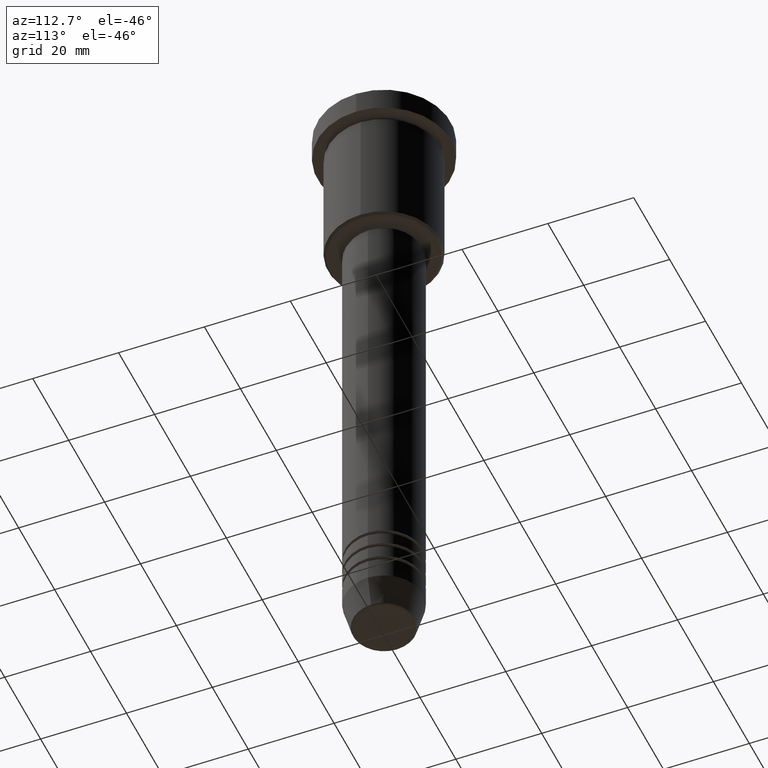
[diagram: clean part render]
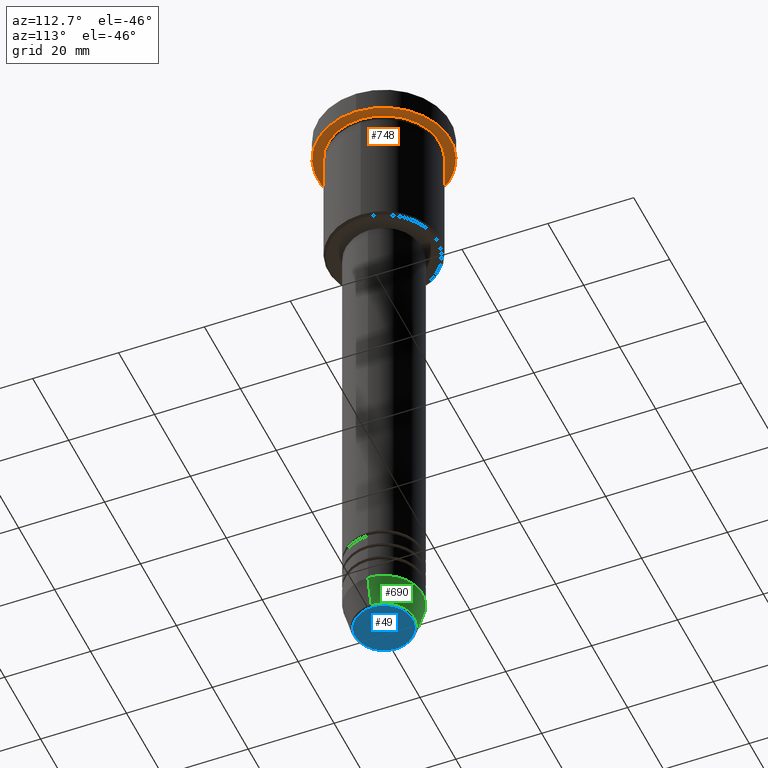
[diagram: same view with three faces highlighted in distinct colors, each labeled with its STEP entity id]
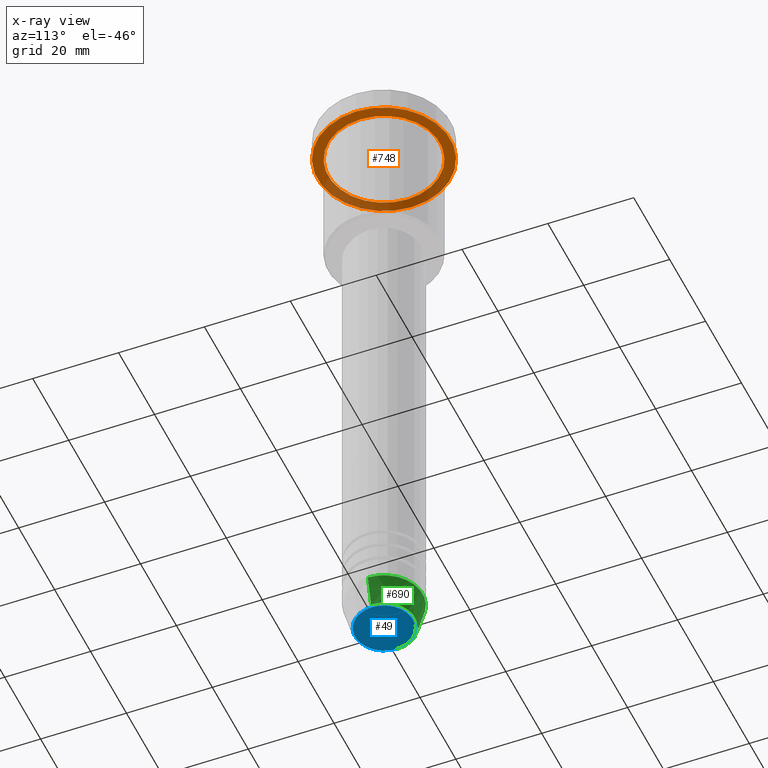
[diagram: x-ray of the same camera — body ghosted, the three highlighted faces saturated]
A machine part, auxiliary view with three faces highlighted in distinct colors.
The next image is the same camera in x-ray (body ghosted, the three faces saturated) — at least one of them is partly hidden behind the body in this view.
Their STEP definitions:

[orange] entity #748 — the highlighted planar face has unit normal (0, 0, -1).
#3 = CIRCLE ( 'NONE', #330, 15.50000000000000000 ) ;
#81 = AXIS2_PLACEMENT_3D ( 'NONE', #113, #506, #870 ) ;
#109 = DIRECTION ( 'NONE',  ( 1.000000000000000000, 0.000000000000000000, 0.000000000000000000 ) ) ;
#113 = CARTESIAN_POINT ( 'NONE',  ( 0.000000000000000000, 0.000000000000000000, -5.999999999999995559 ) ) ;
#147 = VERTEX_POINT ( 'NONE', #962 ) ;
#220 = ORIENTED_EDGE ( 'NONE', *, *, #563, .T. ) ;
#221 = DIRECTION ( 'NONE',  ( 1.000000000000000000, 0.000000000000000000, 0.000000000000000000 ) ) ;
#235 = EDGE_CURVE ( 'NONE', #147, #852, #405, .T. ) ;
#249 = PLANE ( 'NONE',  #1149 ) ;
#283 = EDGE_LOOP ( 'NONE', ( #895, #303 ) ) ;
#300 = CARTESIAN_POINT ( 'NONE',  ( 13.00000000000000000, 1.592040838891559095E-15, -5.999999999999994671 ) ) ;
#303 = ORIENTED_EDGE ( 'NONE', *, *, #933, .F. ) ;
#318 = AXIS2_PLACEMENT_3D ( 'NONE', #1132, #613, #221 ) ;
#328 = VERTEX_POINT ( 'NONE', #1157 ) ;
#330 = AXIS2_PLACEMENT_3D ( 'NONE', #362, #457, #109 ) ;
#359 = EDGE_CURVE ( 'NONE', #328, #1141, #3, .T. ) ;
#362 = CARTESIAN_POINT ( 'NONE',  ( 0.000000000000000000, 0.000000000000000000, -5.999999999999995559 ) ) ;
#405 = CIRCLE ( 'NONE', #713, 13.00000000000000000 ) ;
#440 = DIRECTION ( 'NONE',  ( -1.000000000000000000, 0.000000000000000000, -0.000000000000000000 ) ) ;
#457 = DIRECTION ( 'NONE',  ( -0.000000000000000000, -0.000000000000000000, 1.000000000000000000 ) ) ;
#506 = DIRECTION ( 'NONE',  ( -0.000000000000000000, -0.000000000000000000, 1.000000000000000000 ) ) ;
#521 = CARTESIAN_POINT ( 'NONE',  ( -15.50000000000000000, 1.898202538678397557E-15, -5.999999999999995559 ) ) ;
#563 = EDGE_CURVE ( 'NONE', #852, #147, #906, .T. ) ;
#613 = DIRECTION ( 'NONE',  ( -0.000000000000000000, -0.000000000000000000, 1.000000000000000000 ) ) ;
#627 = CARTESIAN_POINT ( 'NONE',  ( 0.000000000000000000, 15.50000000000000000, -5.999999999999995559 ) ) ;
#710 = FACE_BOUND ( 'NONE', #779, .T. ) ;
#713 = AXIS2_PLACEMENT_3D ( 'NONE', #1071, #813, #1169 ) ;
#734 = CIRCLE ( 'NONE', #318, 15.50000000000000000 ) ;
#748 = ADVANCED_FACE ( 'NONE', ( #710, #1074 ), #249, .T. ) ;
#773 = ORIENTED_EDGE ( 'NONE', *, *, #235, .T. ) ;
#779 = EDGE_LOOP ( 'NONE', ( #773, #220 ) ) ;
#813 = DIRECTION ( 'NONE',  ( -0.000000000000000000, -0.000000000000000000, 1.000000000000000000 ) ) ;
#852 = VERTEX_POINT ( 'NONE', #300 ) ;
#870 = DIRECTION ( 'NONE',  ( -1.000000000000000000, 0.000000000000000000, 0.000000000000000000 ) ) ;
#895 = ORIENTED_EDGE ( 'NONE', *, *, #359, .F. ) ;
#906 = CIRCLE ( 'NONE', #81, 13.00000000000000000 ) ;
#933 = EDGE_CURVE ( 'NONE', #1141, #328, #734, .T. ) ;
#962 = CARTESIAN_POINT ( 'NONE',  ( -13.00000000000000000, 0.000000000000000000, -5.999999999999994671 ) ) ;
#985 = DIRECTION ( 'NONE',  ( 0.000000000000000000, 0.000000000000000000, -1.000000000000000000 ) ) ;
#1071 = CARTESIAN_POINT ( 'NONE',  ( 0.000000000000000000, 0.000000000000000000, -5.999999999999995559 ) ) ;
#1074 = FACE_OUTER_BOUND ( 'NONE', #283, .T. ) ;
#1132 = CARTESIAN_POINT ( 'NONE',  ( 0.000000000000000000, 0.000000000000000000, -5.999999999999995559 ) ) ;
#1141 = VERTEX_POINT ( 'NONE', #521 ) ;
#1149 = AXIS2_PLACEMENT_3D ( 'NONE', #627, #985, #440 ) ;
#1157 = CARTESIAN_POINT ( 'NONE',  ( 15.50000000000000000, 0.000000000000000000, -5.999999999999995559 ) ) ;
#1169 = DIRECTION ( 'NONE',  ( -1.000000000000000000, 0.000000000000000000, 0.000000000000000000 ) ) ;

[blue] entity #49 — the highlighted planar face has unit normal (0, -0, 1).
#13 = EDGE_LOOP ( 'NONE', ( #89, #1055 ) ) ;
#48 = DIRECTION ( 'NONE',  ( 1.000000000000000000, 0.000000000000000000, 0.000000000000000000 ) ) ;
#49 = ADVANCED_FACE ( 'NONE', ( #419 ), #505, .F. ) ;
#89 = ORIENTED_EDGE ( 'NONE', *, *, #381, .T. ) ;
#208 = CARTESIAN_POINT ( 'NONE',  ( 0.000000000000000000, 0.000000000000000000, -151.0000000000000284 ) ) ;
#240 = CARTESIAN_POINT ( 'NONE',  ( 0.000000000000000000, 0.000000000000000000, -151.0000000000000284 ) ) ;
#308 = CIRCLE ( 'NONE', #428, 6.740692158992658278 ) ;
#317 = DIRECTION ( 'NONE',  ( 0.000000000000000000, -0.000000000000000000, 1.000000000000000000 ) ) ;
#381 = EDGE_CURVE ( 'NONE', #946, #1180, #308, .T. ) ;
#419 = FACE_OUTER_BOUND ( 'NONE', #13, .T. ) ;
#428 = AXIS2_PLACEMENT_3D ( 'NONE', #1116, #817, #927 ) ;
#467 = CIRCLE ( 'NONE', #586, 6.740692158992658278 ) ;
#505 = PLANE ( 'NONE',  #1130 ) ;
#564 = EDGE_CURVE ( 'NONE', #1180, #946, #467, .T. ) ;
#586 = AXIS2_PLACEMENT_3D ( 'NONE', #208, #758, #48 ) ;
#609 = DIRECTION ( 'NONE',  ( 1.000000000000000000, 0.000000000000000000, 0.000000000000000000 ) ) ;
#758 = DIRECTION ( 'NONE',  ( 0.000000000000000000, 0.000000000000000000, -1.000000000000000000 ) ) ;
#817 = DIRECTION ( 'NONE',  ( 0.000000000000000000, 0.000000000000000000, -1.000000000000000000 ) ) ;
#927 = DIRECTION ( 'NONE',  ( 1.000000000000000000, 0.000000000000000000, 0.000000000000000000 ) ) ;
#946 = VERTEX_POINT ( 'NONE', #1142 ) ;
#1055 = ORIENTED_EDGE ( 'NONE', *, *, #564, .T. ) ;
#1116 = CARTESIAN_POINT ( 'NONE',  ( 0.000000000000000000, 0.000000000000000000, -151.0000000000000284 ) ) ;
#1130 = AXIS2_PLACEMENT_3D ( 'NONE', #240, #317, #609 ) ;
#1142 = CARTESIAN_POINT ( 'NONE',  ( 6.740692158992658278, 0.000000000000000000, -151.0000000000000284 ) ) ;
#1163 = CARTESIAN_POINT ( 'NONE',  ( -6.740692158992658278, 8.550696569392685681E-16, -151.0000000000000284 ) ) ;
#1180 = VERTEX_POINT ( 'NONE', #1163 ) ;

[green] entity #690 — the highlighted conical surface has half-angle 15 deg.
#5 = VECTOR ( 'NONE', #989, 1000.000000000000000 ) ;
#7 = CARTESIAN_POINT ( 'NONE',  ( -9.000000000000000000, 1.102182119232617714E-15, -144.0000000000000284 ) ) ;
#69 = DIRECTION ( 'NONE',  ( 1.000000000000000000, 0.000000000000000000, 0.000000000000000000 ) ) ;
#94 = DIRECTION ( 'NONE',  ( -0.000000000000000000, -0.000000000000000000, 1.000000000000000000 ) ) ;
#96 = EDGE_CURVE ( 'NONE', #121, #858, #135, .T. ) ;
#107 = VERTEX_POINT ( 'NONE', #857 ) ;
#121 = VERTEX_POINT ( 'NONE', #833 ) ;
#123 = CARTESIAN_POINT ( 'NONE',  ( -9.000000000000000000, 1.102182119232617714E-15, -144.0000000000000284 ) ) ;
#135 = LINE ( 'NONE', #123, #919 ) ;
#143 = CARTESIAN_POINT ( 'NONE',  ( 7.223655072137188604, 0.000000000000000000, -150.6294095225512990 ) ) ;
#248 = AXIS2_PLACEMENT_3D ( 'NONE', #517, #880, #978 ) ;
#267 = FACE_OUTER_BOUND ( 'NONE', #688, .T. ) ;
#274 = EDGE_CURVE ( 'NONE', #107, #858, #1148, .T. ) ;
#278 = DIRECTION ( 'NONE',  ( 1.000000000000000000, 0.000000000000000000, 0.000000000000000000 ) ) ;
#292 = AXIS2_PLACEMENT_3D ( 'NONE', #545, #94, #278 ) ;
#444 = CARTESIAN_POINT ( 'NONE',  ( 9.000000000000000000, 0.000000000000000000, -144.0000000000000284 ) ) ;
#488 = AXIS2_PLACEMENT_3D ( 'NONE', #762, #938, #69 ) ;
#497 = DIRECTION ( 'NONE',  ( -0.2588190451025213501, 3.169619151431772337E-17, 0.9659258262890680902 ) ) ;
#517 = CARTESIAN_POINT ( 'NONE',  ( 0.000000000000000000, 0.000000000000000000, -144.0000000000000284 ) ) ;
#545 = CARTESIAN_POINT ( 'NONE',  ( 0.000000000000000000, 0.000000000000000000, -144.0000000000000284 ) ) ;
#552 = ORIENTED_EDGE ( 'NONE', *, *, #274, .F. ) ;
#574 = ORIENTED_EDGE ( 'NONE', *, *, #1143, .F. ) ;
#615 = EDGE_CURVE ( 'NONE', #1025, #121, #922, .T. ) ;
#688 = EDGE_LOOP ( 'NONE', ( #980, #890, #552, #574 ) ) ;
#690 = ADVANCED_FACE ( 'NONE', ( #267 ), #1003, .T. ) ;
#762 = CARTESIAN_POINT ( 'NONE',  ( 0.000000000000000000, 0.000000000000000000, -150.6294095225512990 ) ) ;
#833 = CARTESIAN_POINT ( 'NONE',  ( -7.223655072137189492, 9.934123627281765110E-16, -150.6294095225512990 ) ) ;
#857 = CARTESIAN_POINT ( 'NONE',  ( 9.000000000000000000, 0.000000000000000000, -144.0000000000000284 ) ) ;
#858 = VERTEX_POINT ( 'NONE', #7 ) ;
#880 = DIRECTION ( 'NONE',  ( -0.000000000000000000, -0.000000000000000000, 1.000000000000000000 ) ) ;
#890 = ORIENTED_EDGE ( 'NONE', *, *, #96, .T. ) ;
#919 = VECTOR ( 'NONE', #497, 1000.000000000000000 ) ;
#922 = CIRCLE ( 'NONE', #488, 7.223655072137188604 ) ;
#938 = DIRECTION ( 'NONE',  ( -0.000000000000000000, -0.000000000000000000, 1.000000000000000000 ) ) ;
#978 = DIRECTION ( 'NONE',  ( 1.000000000000000000, 0.000000000000000000, 0.000000000000000000 ) ) ;
#980 = ORIENTED_EDGE ( 'NONE', *, *, #615, .T. ) ;
#989 = DIRECTION ( 'NONE',  ( 0.2588190451025213501, 0.000000000000000000, 0.9659258262890680902 ) ) ;
#1003 = CONICAL_SURFACE ( 'NONE', #292, 9.000000000000000000, 0.2617993877991500740 ) ;
#1025 = VERTEX_POINT ( 'NONE', #143 ) ;
#1090 = LINE ( 'NONE', #444, #5 ) ;
#1143 = EDGE_CURVE ( 'NONE', #1025, #107, #1090, .T. ) ;
#1148 = CIRCLE ( 'NONE', #248, 9.000000000000000000 ) ;